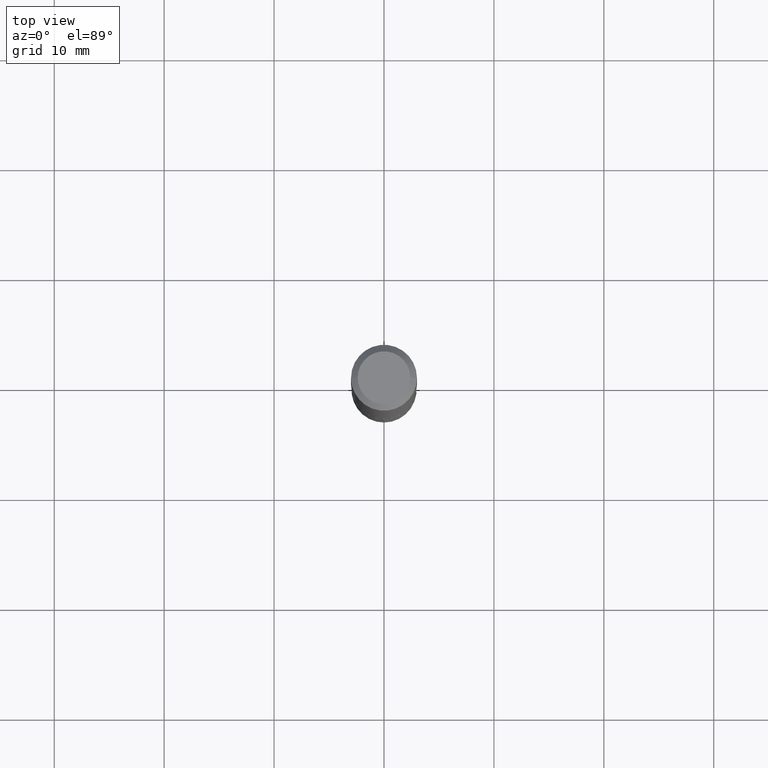
[diagram: clean part render]
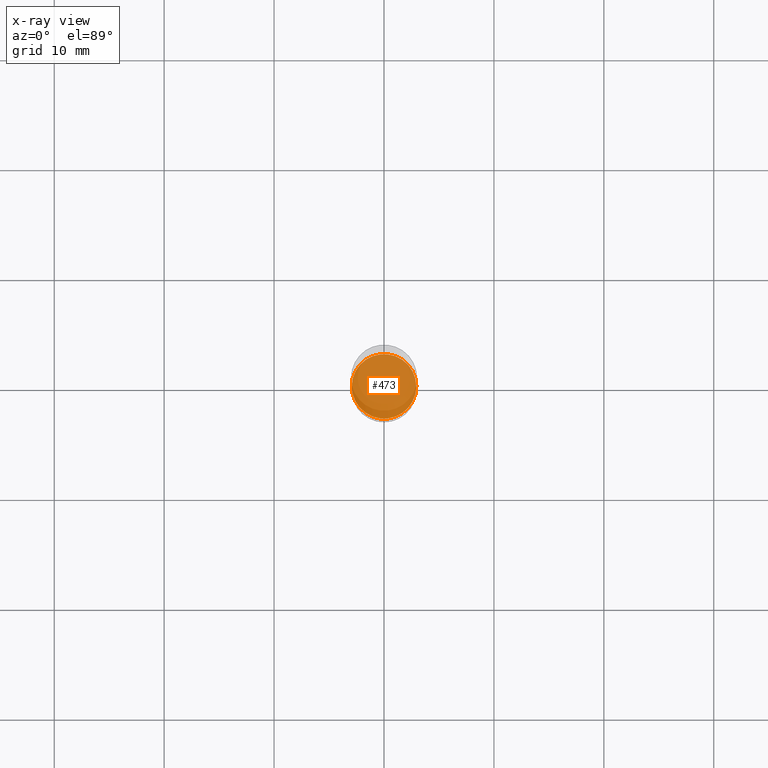
[diagram: x-ray — body ghosted, one internal face saturated and labeled with its STEP entity id]
A machine part, top view, then the same camera in x-ray: the body is ghosted and one INTERNAL B-rep face — a face not visible from any outside direction — is saturated and labeled: STEP entity #473.
In plain terms, the highlighted planar face has unit normal (-0, 0, 1).
Its self-contained STEP definition (entity closure, byte-faithful):
#16 = EDGE_CURVE ( 'NONE', #17, #189, #161, .T. ) ;
#17 = VERTEX_POINT ( 'NONE', #236 ) ;
#35 = PLANE ( 'NONE',  #349 ) ;
#95 = DIRECTION ( 'NONE',  ( 1.000000000000000000, -6.982962677686269866E-15, 0.000000000000000000 ) ) ;
#121 = EDGE_LOOP ( 'NONE', ( #361, #417 ) ) ;
#161 = CIRCLE ( 'NONE', #467, 0.1156500000000000028 ) ;
#189 = VERTEX_POINT ( 'NONE', #451 ) ;
#233 = DIRECTION ( 'NONE',  ( 1.000000000000000000, -6.982962677686269866E-15, 0.000000000000000000 ) ) ;
#236 = CARTESIAN_POINT ( 'NONE',  ( 0.1156500000000000028, -7.130652338319353523E-15, -1.810999999999999943 ) ) ;
#246 = EDGE_CURVE ( 'NONE', #189, #17, #312, .T. ) ;
#312 = CIRCLE ( 'NONE', #368, 0.1156500000000000028 ) ;
#328 = CARTESIAN_POINT ( 'NONE',  ( 4.428744008001282238E-29, -6.323072704644935995E-15, -1.810999999999999943 ) ) ;
#335 = CARTESIAN_POINT ( 'NONE',  ( 4.428744008001282238E-29, -6.323072704644935995E-15, -1.810999999999999943 ) ) ;
#347 = DIRECTION ( 'NONE',  ( -2.438088387897960049E-29, 3.491481338843145188E-15, 1.000000000000000000 ) ) ;
#349 = AXIS2_PLACEMENT_3D ( 'NONE', #328, #347, #447 ) ;
#361 = ORIENTED_EDGE ( 'NONE', *, *, #16, .F. ) ;
#368 = AXIS2_PLACEMENT_3D ( 'NONE', #430, #385, #95 ) ;
#385 = DIRECTION ( 'NONE',  ( -2.445468806185136597E-29, 3.491481338843145583E-15, 1.000000000000000000 ) ) ;
#417 = ORIENTED_EDGE ( 'NONE', *, *, #246, .F. ) ;
#430 = CARTESIAN_POINT ( 'NONE',  ( 4.428744008001282238E-29, -6.323072704644935995E-15, -1.810999999999999943 ) ) ;
#440 = DIRECTION ( 'NONE',  ( -2.445468806185136597E-29, 3.491481338843145583E-15, 1.000000000000000000 ) ) ;
#447 = DIRECTION ( 'NONE',  ( 1.000000000000000000, -6.982962677686265922E-15, 4.876176775795935793E-29 ) ) ;
#451 = CARTESIAN_POINT ( 'NONE',  ( -0.1156500000000000028, -5.498680803564268712E-15, -1.810999999999999943 ) ) ;
#467 = AXIS2_PLACEMENT_3D ( 'NONE', #335, #440, #233 ) ;
#473 = ADVANCED_FACE ( 'NONE', ( #489 ), #35, .F. ) ;
#489 = FACE_OUTER_BOUND ( 'NONE', #121, .T. ) ;